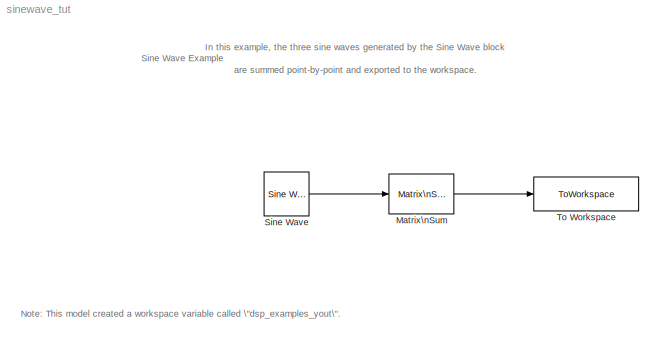
MODEL sinewave_tut
KIND model
CONFIG AbsTol = auto
CONFIG FixedStep = auto
CONFIG MaxStep = auto
CONFIG MinStep = auto
CONFIG PostLoadFcn = set_param(gcs,'SimulationCommand','Update')
CONFIG RelTol = 1e-3
CONFIG Solver = FixedStepDiscrete
CONFIG SolverMode = Auto
CONFIG StartTime = 0.0
CONFIG StopTime = 1
BLOCK [Reference] Matrix\nSum  REF=dspmtrx3/Matrix\nSum
  Dim = Rows
  Ports = [1, 1]
  SourceBlock = dspmtrx3/Matrix\nSum
  SourceType = Matrix Sum
BLOCK [Reference] Sine Wave  REF=dspsrcs3/Sine Wave
  Amplitude = [1 3 2]
  CompMethod = Trigonometric Fcn
  Frequency = [100 250 500]
  OutComplex = Real
  Phase = 0
  Ports = [0, 1]
  ResetState = Restart at time zero
  SampleMode = Discrete
  SampleTime = 1/5000
  SamplesPerFrame = 64
  SourceBlock = dspsrcs3/Sine Wave
  SourceType = Sine Wave
BLOCK [ToWorkspace] To Workspace
  Decimation = 1
  MaxDataPoints = inf
  SampleTime = -1
  SaveFormat = Array
  VariableName = dsp_examples_yout
LINE Matrix\nSum:1 -> To Workspace:1
LINE Sine Wave:1 -> Matrix\nSum:1
